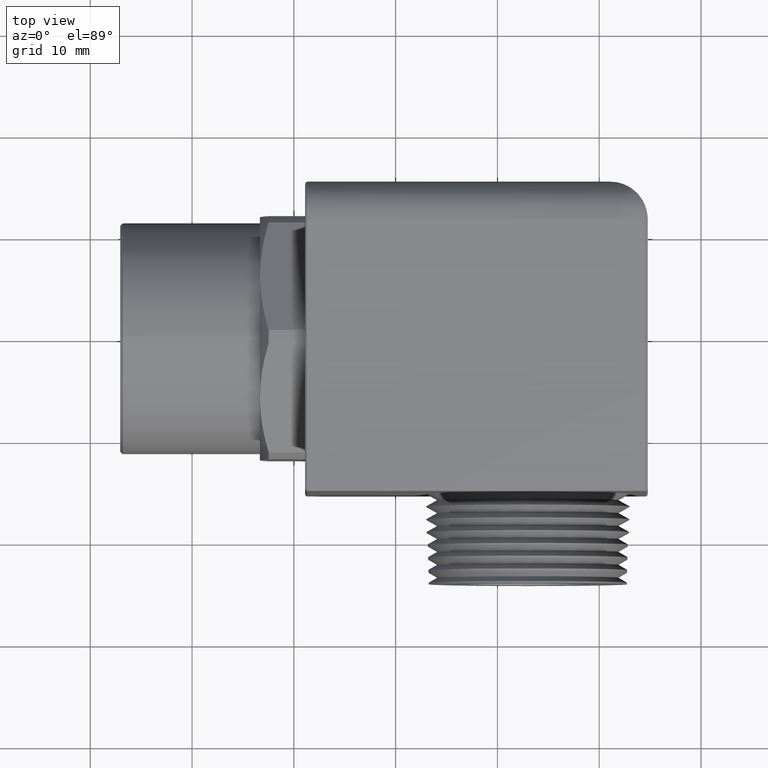
[diagram: clean part render]
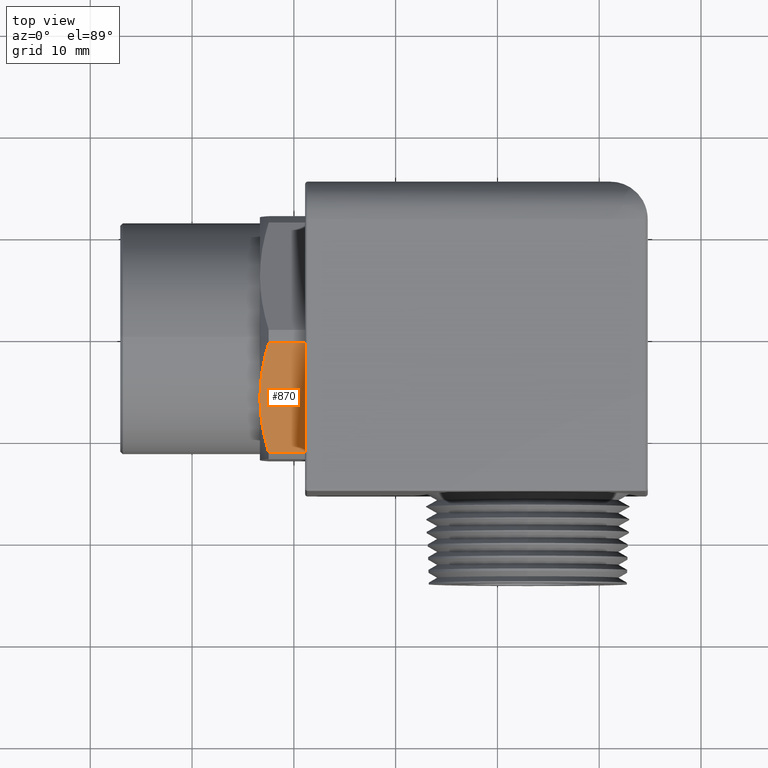
[diagram: same view with one face highlighted and labeled with its STEP entity id]
A machine part, top view. The second image highlights one B-rep face of the part: STEP entity #870.
In plain terms, the highlighted planar face has unit normal (0, 0.5, -0.866).
Its self-contained STEP definition (entity closure, byte-faithful):
#114 = VERTEX_POINT ( 'NONE', #1354 ) ;
#772 = VERTEX_POINT ( 'NONE', #2529 ) ;
#794 = VERTEX_POINT ( 'NONE', #2611 ) ;
#800 = VERTEX_POINT ( 'NONE', #2600 ) ;
#802 = EDGE_CURVE ( 'NONE', #800, #794, #2599, .T. ) ;
#813 = EDGE_LOOP ( 'NONE', ( #871, #873, #874, #876, #877 ) ) ;
#870 = ADVANCED_FACE ( 'NONE', ( #2752 ), #2762, .F. ) ;
#871 = ORIENTED_EDGE ( 'NONE', *, *, #872, .F. ) ;
#872 = EDGE_CURVE ( 'NONE', #794, #772, #2739, .T. ) ;
#873 = ORIENTED_EDGE ( 'NONE', *, *, #802, .F. ) ;
#874 = ORIENTED_EDGE ( 'NONE', *, *, #875, .T. ) ;
#875 = EDGE_CURVE ( 'NONE', #800, #114, #2738, .T. ) ;
#876 = ORIENTED_EDGE ( 'NONE', *, *, #3584, .T. ) ;
#877 = ORIENTED_EDGE ( 'NONE', *, *, #878, .F. ) ;
#878 = EDGE_CURVE ( 'NONE', #772, #3589, #2781, .T. ) ;
#1354 = CARTESIAN_POINT ( 'NONE',  ( -0.3499999999999999800, -0.02522053991155402000, 0.5281481675312048600 ) ) ;
#2529 = CARTESIAN_POINT ( 'NONE',  ( -0.5249999999999999100, -0.2349999999999999900, 0.4070319397786861800 ) ) ;
#2596 = DIRECTION ( 'NONE',  ( -1.000000000000000000, 0.0000000000000000000, 0.0000000000000000000 ) ) ;
#2597 = VECTOR ( 'NONE', #2596, 39.37007874015748100 ) ;
#2598 = CARTESIAN_POINT ( 'NONE',  ( 1.160486150631643500, -0.4447794600884462100, 0.2859157120261672200 ) ) ;
#2599 = LINE ( 'NONE', #2598, #2597 ) ;
#2600 = CARTESIAN_POINT ( 'NONE',  ( -0.3499999999999999800, -0.4447794600884462100, 0.2859157120261672200 ) ) ;
#2611 = CARTESIAN_POINT ( 'NONE',  ( -0.4910806716851094900, -0.4447794600884462100, 0.2859157120261672800 ) ) ;
#2738 = LINE ( 'NONE', #2792, #2785 ) ;
#2739 = B_SPLINE_CURVE_WITH_KNOTS ( 'NONE', 3,
 ( #2791, #2790, #2789, #2788, #2787, #2786 ),
 .UNSPECIFIED., .F., .F.,
 ( 4, 2, 4 ),
 ( 2.364212843832120500E-007, 0.003105692998414943300, 0.006211149575545503600 ),
 .UNSPECIFIED. ) ;
#2740 = DIRECTION ( 'NONE',  ( 0.0000000000000000000, 0.8660254037844386000, 0.5000000000000000000 ) ) ;
#2741 = DIRECTION ( 'NONE',  ( 0.0000000000000000000, 0.5000000000000001100, -0.8660254037844387100 ) ) ;
#2742 = CARTESIAN_POINT ( 'NONE',  ( 1.160486150631643500, -0.02522053991155372200, 0.5281481675312048600 ) ) ;
#2751 = AXIS2_PLACEMENT_3D ( 'NONE', #2742, #2741, #2740 ) ;
#2752 = FACE_OUTER_BOUND ( 'NONE', #813, .T. ) ;
#2762 = PLANE ( 'NONE',  #2751 ) ;
#2772 = CARTESIAN_POINT ( 'NONE',  ( -0.4910806716851094900, -0.02522053991155353400, 0.5281481675312048600 ) ) ;
#2773 = CARTESIAN_POINT ( 'NONE',  ( -0.5015628416436421800, -0.05954158508704616300, 0.5083329028602651100 ) ) ;
#2774 = CARTESIAN_POINT ( 'NONE',  ( -0.5100983867542437900, -0.09413928115250423700, 0.4883579137235321000 ) ) ;
#2775 = CARTESIAN_POINT ( 'NONE',  ( -0.5189040066949922600, -0.1466039710003213500, 0.4580674109169446400 ) ) ;
#2776 = CARTESIAN_POINT ( 'NONE',  ( -0.5211723890773708500, -0.1641869688379369000, 0.4479158623822366300 ) ) ;
#2777 = CARTESIAN_POINT ( 'NONE',  ( -0.5242246959376507500, -0.1995639330522917500, 0.4274909625699671600 ) ) ;
#2778 = CARTESIAN_POINT ( 'NONE',  ( -0.5249999999999996900, -0.2173507429270360200, 0.4172217431007587100 ) ) ;
#2779 = CARTESIAN_POINT ( 'NONE',  ( -0.5249999999999999100, -0.2349999999999999900, 0.4070319397786861800 ) ) ;
#2781 = B_SPLINE_CURVE_WITH_KNOTS ( 'NONE', 3,
 ( #2779, #2778, #2777, #2776, #2775, #2774, #2773, #2772 ),
 .UNSPECIFIED., .F., .F.,
 ( 4, 2, 2, 4 ),
 ( 0.006211149575545503600, 0.007753831712335008800, 0.009296513849124514800, 0.01238187812270352700 ),
 .UNSPECIFIED. ) ;
#2784 = DIRECTION ( 'NONE',  ( 0.0000000000000000000, 0.8660254037844386000, 0.5000000000000000000 ) ) ;
#2785 = VECTOR ( 'NONE', #2784, 39.37007874015748100 ) ;
#2786 = CARTESIAN_POINT ( 'NONE',  ( -0.5249999999999999100, -0.2349999999999999900, 0.4070319397786861800 ) ) ;
#2787 = CARTESIAN_POINT ( 'NONE',  ( -0.5249999999999999100, -0.2705283827767446800, 0.3865196184186605600 ) ) ;
#2788 = CARTESIAN_POINT ( 'NONE',  ( -0.5218566174881363900, -0.3057425288952003200, 0.3661887216778872400 ) ) ;
#2789 = CARTESIAN_POINT ( 'NONE',  ( -0.5101475928006913300, -0.3756287704110581300, 0.3258398813260555700 ) ) ;
#2790 = CARTESIAN_POINT ( 'NONE',  ( -0.5016101000902005700, -0.4103036798451895100, 0.3058203130301337900 ) ) ;
#2791 = CARTESIAN_POINT ( 'NONE',  ( -0.4910806716851094900, -0.4447794600884462100, 0.2859157120261672800 ) ) ;
#2792 = CARTESIAN_POINT ( 'NONE',  ( -0.3499999999999999800, -0.02522053991155372200, 0.5281481675312048600 ) ) ;
#3230 = DIRECTION ( 'NONE',  ( -1.000000000000000000, 0.0000000000000000000, 0.0000000000000000000 ) ) ;
#3231 = VECTOR ( 'NONE', #3230, 39.37007874015748100 ) ;
#3232 = CARTESIAN_POINT ( 'NONE',  ( 1.160486150631643500, -0.02522053991155353400, 0.5281481675312048600 ) ) ;
#3233 = LINE ( 'NONE', #3232, #3231 ) ;
#3306 = CARTESIAN_POINT ( 'NONE',  ( -0.4910806716851094900, -0.02522053991155353400, 0.5281481675312048600 ) ) ;
#3584 = EDGE_CURVE ( 'NONE', #114, #3589, #3233, .T. ) ;
#3589 = VERTEX_POINT ( 'NONE', #3306 ) ;